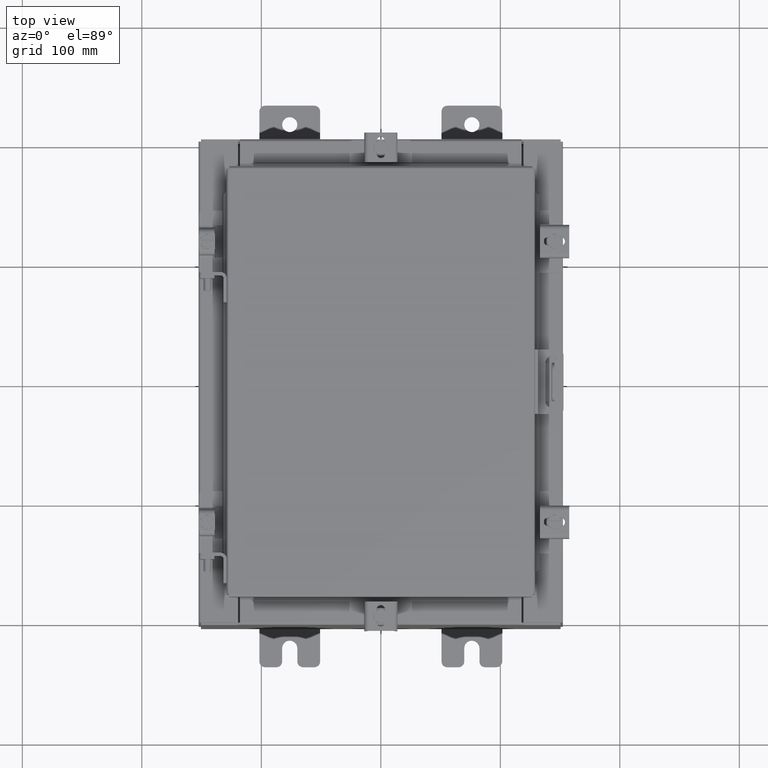
[diagram: clean part render]
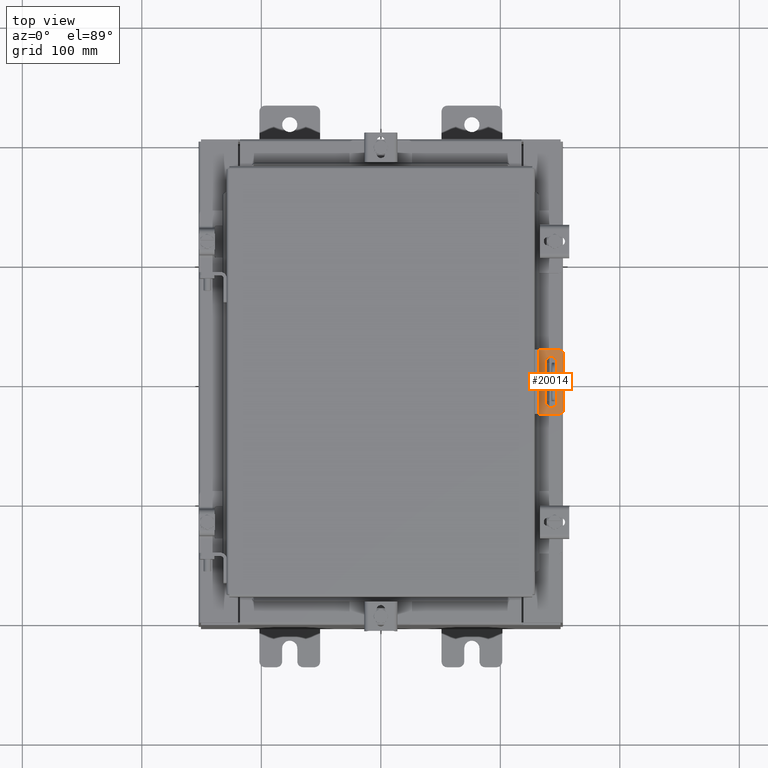
[diagram: same view with one face highlighted and labeled with its STEP entity id]
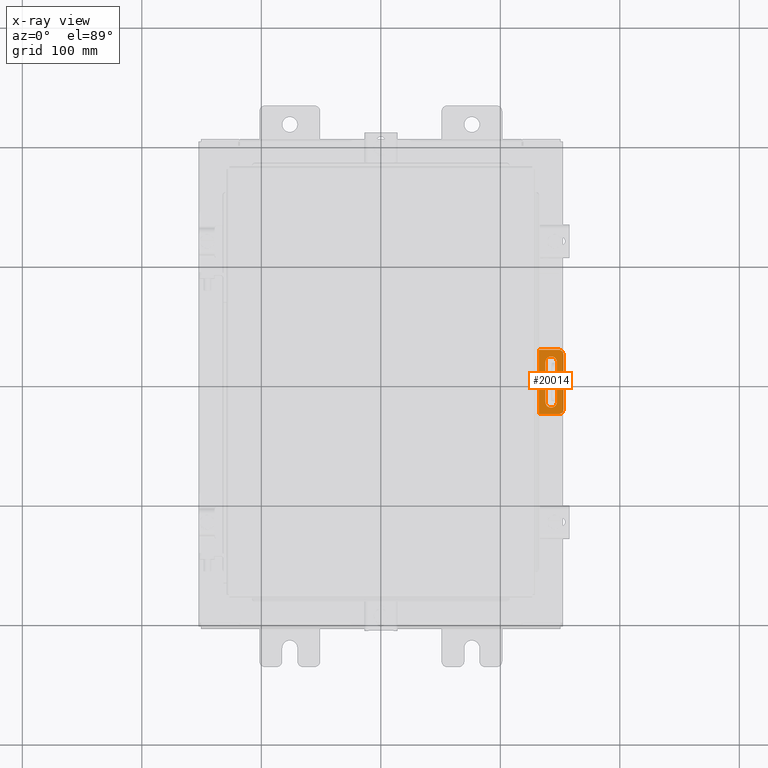
[diagram: x-ray of the same camera — body ghosted, the highlighted face saturated]
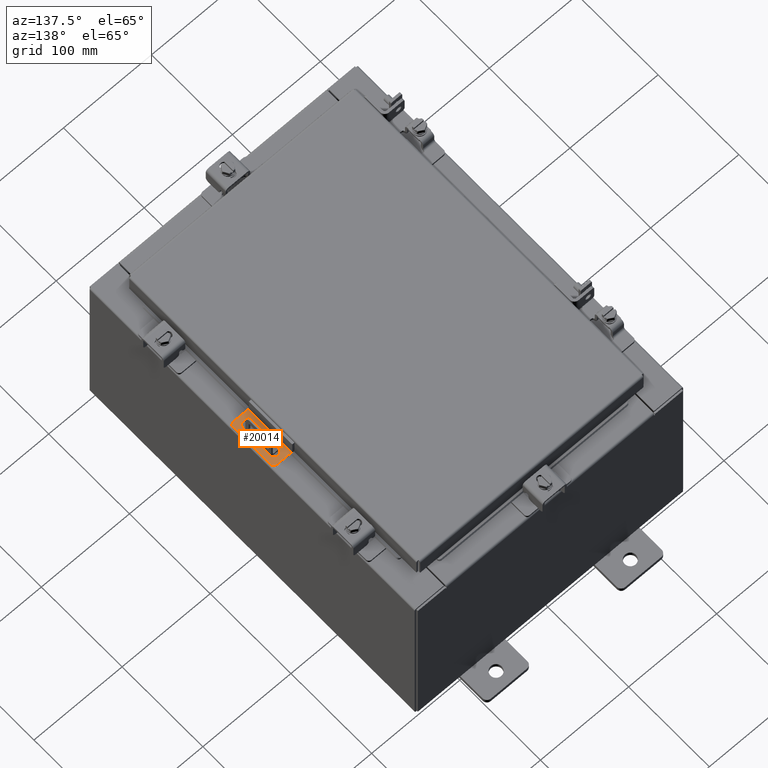
[diagram: same view with one face highlighted and labeled with its STEP entity id]
A machine part, top view. The second image highlights one B-rep face of the part: STEP entity #20014.
The next image is the same camera in x-ray: the body ghosted, the highlighted face saturated — about 0% of this face is hidden behind the body in this view.
A second angle (auxiliary view) of the same face is appended — the face is thin or edge-on in the first view.
In plain terms, the highlighted planar face has unit normal (0, 0, -1).
Its self-contained STEP definition (entity closure, byte-faithful):
#139 = CARTESIAN_POINT ( 'NONE',  ( 0.7210000000000002000, -0.3000000000000021500, 0.6595000000000002000 ) ) ;
#199 = AXIS2_PLACEMENT_3D ( 'NONE', #4279, #15577, #5896 ) ;
#276 = DIRECTION ( 'NONE',  ( 1.000000000000000000, -3.502369222646493300E-015, 0.0000000000000000000 ) ) ;
#920 = EDGE_CURVE ( 'NONE', #18742, #14968, #16337, .T. ) ;
#958 = VERTEX_POINT ( 'NONE', #20238 ) ;
#1554 = DIRECTION ( 'NONE',  ( -0.0000000000000000000, -0.0000000000000000000, 1.000000000000000000 ) ) ;
#1620 = VERTEX_POINT ( 'NONE', #6550 ) ;
#1879 = EDGE_LOOP ( 'NONE', ( #6563, #17741, #13114, #12124 ) ) ;
#2096 = EDGE_CURVE ( 'NONE', #5230, #18742, #17685, .T. ) ;
#2236 = CARTESIAN_POINT ( 'NONE',  ( 0.7210000000000002000, -0.3000000000000021500, 0.6594999999999999800 ) ) ;
#2410 = VECTOR ( 'NONE', #6586, 39.37007874015748100 ) ;
#3881 = FACE_BOUND ( 'NONE', #1879, .T. ) ;
#4279 = CARTESIAN_POINT ( 'NONE',  ( 0.7839999999999999200, -0.3000000000000023200, 0.9040000000000000300 ) ) ;
#4409 = CARTESIAN_POINT ( 'NONE',  ( 0.1299999999999998400, -0.3000000000000001000, 1.059999999999999600 ) ) ;
#4986 = VECTOR ( 'NONE', #13355, 39.37007874015748100 ) ;
#5055 = ORIENTED_EDGE ( 'NONE', *, *, #11523, .T. ) ;
#5104 = ORIENTED_EDGE ( 'NONE', *, *, #10892, .T. ) ;
#5230 = VERTEX_POINT ( 'NONE', #19621 ) ;
#5253 = PLANE ( 'NONE',  #13205 ) ;
#5586 = VERTEX_POINT ( 'NONE', #12487 ) ;
#5612 = AXIS2_PLACEMENT_3D ( 'NONE', #19514, #9847, #276 ) ;
#5658 = CARTESIAN_POINT ( 'NONE',  ( 0.3460000000000001400, -0.3000000000000008200, 0.6594999999999999800 ) ) ;
#5794 = CIRCLE ( 'NONE', #5612, 0.1559999999999999200 ) ;
#5896 = DIRECTION ( 'NONE',  ( 1.000000000000000000, -3.502369222646493300E-015, 0.0000000000000000000 ) ) ;
#5907 = LINE ( 'NONE', #9536, #14463 ) ;
#5950 = DIRECTION ( 'NONE',  ( 3.496114991891766800E-015, 1.000000000000000000, 0.0000000000000000000 ) ) ;
#6138 = AXIS2_PLACEMENT_3D ( 'NONE', #6541, #17833, #8164 ) ;
#6541 = CARTESIAN_POINT ( 'NONE',  ( 0.5335000000000000900, -0.3000000000000014900, -0.6534999999999998600 ) ) ;
#6550 = CARTESIAN_POINT ( 'NONE',  ( 0.1299999999999998400, -0.3000000000000001000, -1.060000000000000300 ) ) ;
#6563 = ORIENTED_EDGE ( 'NONE', *, *, #9799, .F. ) ;
#6586 = DIRECTION ( 'NONE',  ( -1.000000000000000000, 3.496114991891766400E-015, 0.0000000000000000000 ) ) ;
#6804 = CARTESIAN_POINT ( 'NONE',  ( 0.9399999999999998400, -0.3000000000000029300, 1.059999999999999600 ) ) ;
#6866 = DIRECTION ( 'NONE',  ( -3.496114991891766800E-015, -1.000000000000000000, 0.0000000000000000000 ) ) ;
#7304 = EDGE_LOOP ( 'NONE', ( #15211, #15950, #12251, #5055, #11831, #5104 ) ) ;
#7451 = VERTEX_POINT ( 'NONE', #7452 ) ;
#7452 = CARTESIAN_POINT ( 'NONE',  ( 0.7839999999999999200, -0.3000000000000023800, 1.059999999999999600 ) ) ;
#8164 = DIRECTION ( 'NONE',  ( -1.000000000000000000, 3.460340791974733800E-015, 0.0000000000000000000 ) ) ;
#8820 = VECTOR ( 'NONE', #14165, 39.37007874015748100 ) ;
#9208 = CARTESIAN_POINT ( 'NONE',  ( 0.9399999999999998400, -0.3000000000000029300, -0.9040000000000002500 ) ) ;
#9273 = CARTESIAN_POINT ( 'NONE',  ( 0.5335000000000003100, -0.3000000000000014900, 0.6594999999999999800 ) ) ;
#9417 = VERTEX_POINT ( 'NONE', #4409 ) ;
#9536 = CARTESIAN_POINT ( 'NONE',  ( 0.1299999999999998900, -0.3000000000000001000, 1.059999999999999600 ) ) ;
#9799 = EDGE_CURVE ( 'NONE', #14968, #5586, #18082, .T. ) ;
#9804 = CARTESIAN_POINT ( 'NONE',  ( 0.9399999999999998400, -0.3000000000000029300, 0.9040000000000000300 ) ) ;
#9847 = DIRECTION ( 'NONE',  ( 3.496114991891766800E-015, 1.000000000000000000, -0.0000000000000000000 ) ) ;
#9946 = DIRECTION ( 'NONE',  ( 5.201538449474986600E-017, 0.0000000000000000000, 1.000000000000000000 ) ) ;
#10228 = DIRECTION ( 'NONE',  ( -1.040307689894997300E-016, 0.0000000000000000000, -1.000000000000000000 ) ) ;
#10892 = EDGE_CURVE ( 'NONE', #7451, #18032, #12733, .T. ) ;
#10968 = LINE ( 'NONE', #14683, #2410 ) ;
#11250 = EDGE_CURVE ( 'NONE', #958, #1620, #10968, .T. ) ;
#11523 = EDGE_CURVE ( 'NONE', #1620, #9417, #5907, .T. ) ;
#11749 = CARTESIAN_POINT ( 'NONE',  ( 0.9399999999999998400, -0.3000000000000029300, 1.059999999999999600 ) ) ;
#11831 = ORIENTED_EDGE ( 'NONE', *, *, #14771, .F. ) ;
#12124 = ORIENTED_EDGE ( 'NONE', *, *, #13830, .F. ) ;
#12251 = ORIENTED_EDGE ( 'NONE', *, *, #11250, .T. ) ;
#12473 = CARTESIAN_POINT ( 'NONE',  ( 0.9399999999999998400, -0.3000000000000029300, 1.059999999999999600 ) ) ;
#12487 = CARTESIAN_POINT ( 'NONE',  ( 0.7210000000000000900, -0.3000000000000021500, -0.6534999999999998600 ) ) ;
#12733 = CIRCLE ( 'NONE', #199, 0.1559999999999999200 ) ;
#13100 = LINE ( 'NONE', #12473, #8820 ) ;
#13114 = ORIENTED_EDGE ( 'NONE', *, *, #2096, .F. ) ;
#13205 = AXIS2_PLACEMENT_3D ( 'NONE', #6804, #6866, #18161 ) ;
#13355 = DIRECTION ( 'NONE',  ( -0.0000000000000000000, -0.0000000000000000000, -1.000000000000000000 ) ) ;
#13654 = VERTEX_POINT ( 'NONE', #9208 ) ;
#13733 = DIRECTION ( 'NONE',  ( -1.000000000000000000, 3.460340791974733800E-015, 0.0000000000000000000 ) ) ;
#13830 = EDGE_CURVE ( 'NONE', #5586, #5230, #15438, .T. ) ;
#14165 = DIRECTION ( 'NONE',  ( -1.000000000000000000, 3.496114991891766400E-015, 0.0000000000000000000 ) ) ;
#14463 = VECTOR ( 'NONE', #1554, 39.37007874015748100 ) ;
#14683 = CARTESIAN_POINT ( 'NONE',  ( 0.9399999999999998400, -0.3000000000000029300, -1.060000000000000300 ) ) ;
#14771 = EDGE_CURVE ( 'NONE', #7451, #9417, #13100, .T. ) ;
#14968 = VERTEX_POINT ( 'NONE', #139 ) ;
#15021 = EDGE_CURVE ( 'NONE', #13654, #958, #5794, .T. ) ;
#15211 = ORIENTED_EDGE ( 'NONE', *, *, #17096, .T. ) ;
#15438 = CIRCLE ( 'NONE', #6138, 0.1874999999999999700 ) ;
#15577 = DIRECTION ( 'NONE',  ( 3.496114991891766800E-015, 1.000000000000000000, -0.0000000000000000000 ) ) ;
#15950 = ORIENTED_EDGE ( 'NONE', *, *, #15021, .T. ) ;
#16121 = AXIS2_PLACEMENT_3D ( 'NONE', #9273, #5950, #13733 ) ;
#16337 = CIRCLE ( 'NONE', #16121, 0.1874999999999999700 ) ;
#17096 = EDGE_CURVE ( 'NONE', #18032, #13654, #17873, .T. ) ;
#17612 = VECTOR ( 'NONE', #10228, 39.37007874015748100 ) ;
#17685 = LINE ( 'NONE', #18080, #18155 ) ;
#17741 = ORIENTED_EDGE ( 'NONE', *, *, #920, .F. ) ;
#17833 = DIRECTION ( 'NONE',  ( 3.496114991891766800E-015, 1.000000000000000000, 0.0000000000000000000 ) ) ;
#17873 = LINE ( 'NONE', #11749, #4986 ) ;
#18032 = VERTEX_POINT ( 'NONE', #9804 ) ;
#18080 = CARTESIAN_POINT ( 'NONE',  ( 0.3460000000000000900, -0.3000000000000008200, -0.6534999999999997500 ) ) ;
#18082 = LINE ( 'NONE', #2236, #17612 ) ;
#18155 = VECTOR ( 'NONE', #9946, 39.37007874015748100 ) ;
#18161 = DIRECTION ( 'NONE',  ( 1.000000000000000000, -3.496114991891766800E-015, 0.0000000000000000000 ) ) ;
#18742 = VERTEX_POINT ( 'NONE', #5658 ) ;
#19514 = CARTESIAN_POINT ( 'NONE',  ( 0.7839999999999999200, -0.3000000000000023200, -0.9040000000000002500 ) ) ;
#19621 = CARTESIAN_POINT ( 'NONE',  ( 0.3460000000000000900, -0.3000000000000008800, -0.6534999999999997500 ) ) ;
#20008 = FACE_OUTER_BOUND ( 'NONE', #7304, .T. ) ;
#20014 = ADVANCED_FACE ( 'NONE', ( #3881, #20008 ), #5253, .F. ) ;
#20238 = CARTESIAN_POINT ( 'NONE',  ( 0.7840000000000000300, -0.3000000000000023800, -1.060000000000000300 ) ) ;